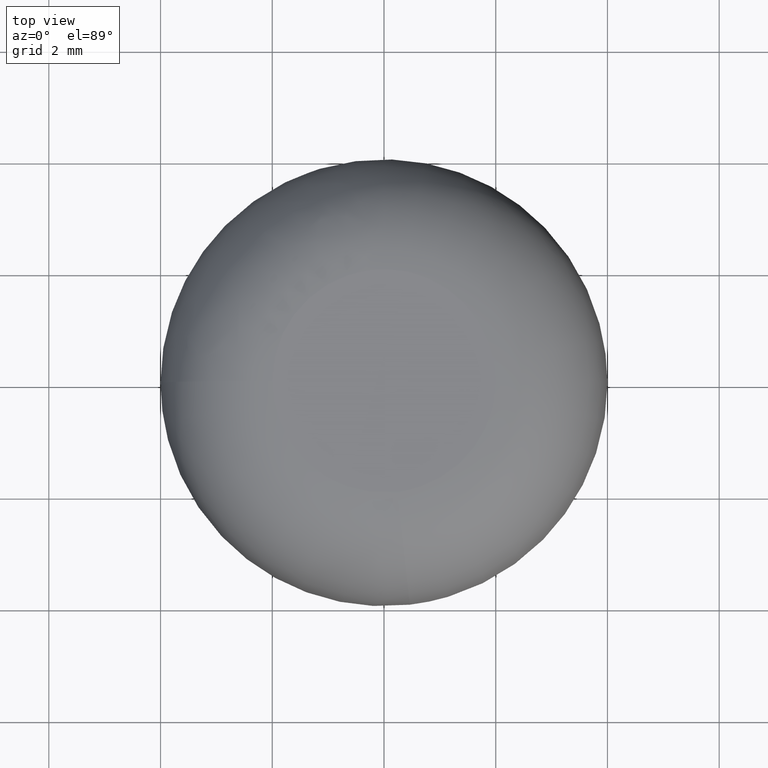
[diagram: clean part render]
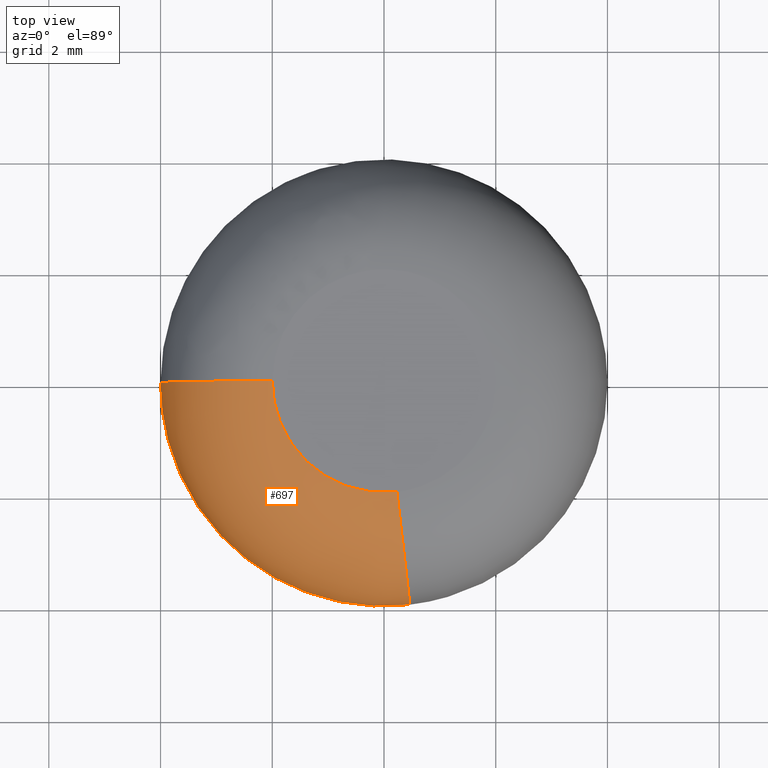
[diagram: same view with one face highlighted and labeled with its STEP entity id]
A machine part, top view. The second image highlights one B-rep face of the part: STEP entity #697.
In plain terms, the highlighted face is a freeform B-spline surface patch.
Its self-contained STEP definition (entity closure, byte-faithful):
#598=CARTESIAN_POINT('',(0.461856469295593,-3.973246607218058,4.600000000000001));
#599=CARTESIAN_POINT('',(0.461856469295593,-3.973246607218058,6.600000000000001));
#600=CARTESIAN_POINT('',(0.230928234647797,-1.986623303609029,6.600000000000001));
#601=CARTESIAN_POINT('',(0.222650753475176,-1.915414007708967,6.599999999999997));
#602=CARTESIAN_POINT('',(0.214394515158167,-1.844387459284799,6.594867314061065));
#603=CARTESIAN_POINT('',(0.231703090120143,-4.0,4.600000000000000));
#604=CARTESIAN_POINT('',(0.231703090120143,-4.0,6.600000000000000));
#605=CARTESIAN_POINT('',(0.115851545060072,-2.0,6.599999999999999));
#606=CARTESIAN_POINT('',(0.111698917363782,-1.928311224608411,6.600000000000000));
#607=CARTESIAN_POINT('',(0.107556946734385,-1.856806427201538,6.594867314061063));
#608=CARTESIAN_POINT('',(0.0,-4.0,4.600000000000000));
#609=CARTESIAN_POINT('',(0.0,-4.000000000000000,6.599999999999999));
#610=CARTESIAN_POINT('',(0.0,-2.0,6.600000000000000));
#611=CARTESIAN_POINT('',(0.0,-1.928311224608411,6.600000000000000));
#612=CARTESIAN_POINT('',(0.0,-1.856806427201538,6.594867314061065));
#613=CARTESIAN_POINT('',(-4.000000000000000,-4.000000000000000,4.599999999999999));
#614=CARTESIAN_POINT('',(-3.999999999999999,-3.999999999999999,6.600000000000001));
#615=CARTESIAN_POINT('',(-2.000000000000000,-2.000000000000000,6.599999999999999));
#616=CARTESIAN_POINT('',(-1.928311224608410,-1.928311224608410,6.599999999999999));
#617=CARTESIAN_POINT('',(-1.856806427201538,-1.856806427201538,6.594867314061067));
#618=CARTESIAN_POINT('',(-4.0,0.0,4.600000000000000));
#619=CARTESIAN_POINT('',(-4.000000000000000,0.0,6.599999999999999));
#620=CARTESIAN_POINT('',(-2.0,0.0,6.600000000000000));
#621=CARTESIAN_POINT('',(-1.928311224608411,0.0,6.600000000000000));
#622=CARTESIAN_POINT('',(-1.856806427201538,0.0,6.594867314061065));
#630=(BOUNDED_SURFACE()B_SPLINE_SURFACE(2,2,((#598,#603,#608,#613,#618),(#599,#604,#609,#614,#619),(#600,#605,#610,#615,#620),(#601,#606,#611,#616,#621),(#602,#607,#612,#617,#622)),.UNSPECIFIED.,.F.,.F.,.U.)B_SPLINE_SURFACE_WITH_KNOTS((3,2,3),(3,2,3),(0.0,3.313708498984761,3.479228238509049),(0.0,0.530192854205772,7.157609852175291),.UNSPECIFIED.)GEOMETRIC_REPRESENTATION_ITEM()RATIONAL_B_SPLINE_SURFACE(((0.956886155731908,0.976568564840903,1.0,0.707106781186548,1.0),(0.676620689541559,0.690538254492617,0.707106781186548,0.500000000000000,0.707106781186548),(0.956886155731908,0.976568564840903,1.0,0.707106781186548,1.0),(0.942886895695701,0.962281350839006,0.985369983720268,0.696761797466280,0.985369983720268),(0.930286161737110,0.949421429515899,0.972201506066881,0.687450277619666,0.972201506066881)))REPRESENTATION_ITEM('')SURFACE());
#631=CARTESIAN_POINT('',(0.230926632963222,-1.986623489789872,6.600000000000000));
#632=VERTEX_POINT('',#631);
#633=CARTESIAN_POINT('',(-2.0,0.0,6.600000000000000));
#634=VERTEX_POINT('',#633);
#635=CARTESIAN_POINT('',(0.230926632963222,-1.986623489789872,6.600000000000000));
#636=CARTESIAN_POINT('',(0.115850736120276,-2.000000000000000,6.600000000000001));
#637=CARTESIAN_POINT('',(0.0,-2.0,6.600000000000000));
#638=CARTESIAN_POINT('',(-2.000000000000000,-2.000000000000000,6.599999999999999));
#639=CARTESIAN_POINT('',(-2.0,0.0,6.600000000000000));
#647=(BOUNDED_CURVE()B_SPLINE_CURVE(2,(#635,#636,#637,#638,#639),.UNSPECIFIED.,.F.,.U.)B_SPLINE_CURVE_WITH_KNOTS((3,2,3),(0.730000155452255,0.750000000000000,1.0),.UNSPECIFIED.)CURVE()GEOMETRIC_REPRESENTATION_ITEM()RATIONAL_B_SPLINE_CURVE((0.956886424158610,0.976568724618569,1.0,0.707106781186548,1.0))REPRESENTATION_ITEM(''));
#648=EDGE_CURVE('',#632,#634,#647,.T.);
#649=ORIENTED_EDGE('',*,*,#648,.T.);
#650=CARTESIAN_POINT('',(-4.0,0.0,4.600000000000000));
#651=VERTEX_POINT('',#650);
#652=CARTESIAN_POINT('',(-4.0,0.0,4.600000000000000));
#653=CARTESIAN_POINT('',(-4.0,0.0,6.600000000000001));
#654=CARTESIAN_POINT('',(-1.999999999999999,0.0,6.600000000000001));
#662=(BOUNDED_CURVE()B_SPLINE_CURVE(2,(#652,#653,#654),.UNSPECIFIED.,.F.,.U.)B_SPLINE_CURVE_WITH_KNOTS((3,3),(0.0,0.250000000000000),.UNSPECIFIED.)CURVE()GEOMETRIC_REPRESENTATION_ITEM()RATIONAL_B_SPLINE_CURVE((1.0,0.707106781186547,1.0))REPRESENTATION_ITEM(''));
#663=EDGE_CURVE('',#651,#634,#662,.T.);
#664=ORIENTED_EDGE('',*,*,#663,.F.);
#665=CARTESIAN_POINT('',(0.461856760234681,-3.973246573398824,4.600000000000000));
#666=VERTEX_POINT('',#665);
#667=CARTESIAN_POINT('',(0.461856760234681,-3.973246573398825,4.600000000000000));
#668=CARTESIAN_POINT('',(0.231703157729662,-4.000000000000001,4.600000000000000));
#669=CARTESIAN_POINT('',(0.0,-4.0,4.600000000000000));
#670=CARTESIAN_POINT('',(-4.000000000000000,-4.000000000000000,4.599999999999999));
#671=CARTESIAN_POINT('',(-4.0,0.0,4.600000000000000));
#679=(BOUNDED_CURVE()B_SPLINE_CURVE(2,(#667,#668,#669,#670,#671),.UNSPECIFIED.,.F.,.U.)B_SPLINE_CURVE_WITH_KNOTS((3,2,3),(0.730000013374359,0.750000000000000,1.0),.UNSPECIFIED.)CURVE()GEOMETRIC_REPRESENTATION_ITEM()RATIONAL_B_SPLINE_CURVE((0.956886144514643,0.976568558163960,1.0,0.707106781186548,1.0))REPRESENTATION_ITEM(''));
#680=EDGE_CURVE('',#666,#651,#679,.T.);
#681=ORIENTED_EDGE('',*,*,#680,.F.);
#682=CARTESIAN_POINT('',(0.461856760234681,-3.973246573398824,4.600000000000000));
#683=CARTESIAN_POINT('',(0.461855925926124,-3.973246670380268,6.600000000001687));
#684=CARTESIAN_POINT('',(0.230926632963222,-1.986623489789873,6.600000000000000));
#692=(BOUNDED_CURVE()B_SPLINE_CURVE(2,(#682,#683,#684),.UNSPECIFIED.,.F.,.U.)B_SPLINE_CURVE_WITH_KNOTS((3,3),(0.0,0.250000000000149),.UNSPECIFIED.)CURVE()GEOMETRIC_REPRESENTATION_ITEM()RATIONAL_B_SPLINE_CURVE((0.956886118190660,0.676620662995720,0.956886118190994))REPRESENTATION_ITEM(''));
#693=EDGE_CURVE('',#666,#632,#692,.T.);
#694=ORIENTED_EDGE('',*,*,#693,.T.);
#695=EDGE_LOOP('',(#649,#664,#681,#694));
#696=FACE_OUTER_BOUND('',#695,.T.);
#697=ADVANCED_FACE('',(#696),#630,.T.);